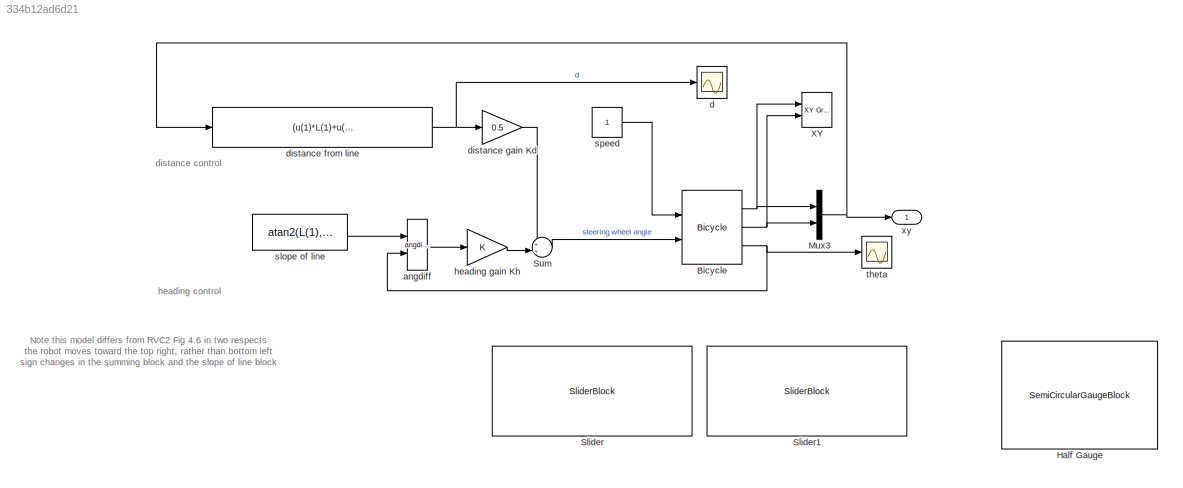
MODEL slx_334b12ad6d21
KIND model
CONFIG AbsTol = auto
CONFIG EnableMultiTasking = on
CONFIG FixedStep = auto
CONFIG InitFcn = if ~exist('x0')\n  x0 = [5 5 0];\n  msgbox(sprintf('x0 not defined in workspace, setting it to [%g %g %g]\n', x0));\nend\nif ~exist('L')\n  L = [1 -2 4];\n  msgbox(sprintf('L not defined in workspace, setting it to [%g %g %g]\n', L));\nend\n% clean up old vehicle icons\nset(0, 'ShowHiddenHandles', 'on')\ndelete(findobj('Tag', 'vehicle'))\nset(0, 'ShowHiddenHandles', 'off')
CONFIG MaxStep = auto
CONFIG MinStep = auto
CONFIG RelTol = 1e-3
CONFIG SampleTimeConstraint = Unconstrained
CONFIG Solver = ode45
CONFIG SolverName = ode45
CONFIG StartTime = 0.0
CONFIG StopFcn = % update the XY scope\nset(0, 'ShowHiddenHandles', 'on')\nfig = findobj('name', 'XY');\nax = findobj(fig, 'type', 'axes');\naxes(ax)\ngrid on\nhold on\nplot_vehicle(x0, 'r', 'Tag', 'vehicle')\nplot_homline(L, 'r--', 'Tag', 'vehicle')\nhold off\nset(0, 'ShowHiddenHandles', 'off')
CONFIG StopTime = 15.0
BLOCK [Reference] Bicycle  REF=roblocks/Vehicles/Bicycle  (lib defined in mdl_2a292b13c81b, mdl_69400f8cfe22, +12 more)
  Ports = [2, 3]
  SourceBlock = roblocks/Vehicles/Bicycle
BLOCK [SemiCircularGaugeBlock] Half Gauge
  LabelPosition = Bottom
  ScaleMax = 1
  ScaleMin = -1
BLOCK [Mux] Mux3
  DisplayOption = bar
  Inputs = 2
  Ports = [2, 1]
BLOCK [SliderBlock] Slider
  LabelPosition = Bottom
  ScaleMax = 1
BLOCK [SliderBlock] Slider1
  LabelPosition = Bottom
  ScaleMax = 2
BLOCK [Sum] Sum
  IconShape = round
  InputSameDT = off
  Inputs = ++|
  OutDataTypeStr = Inherit: Inherit via internal rule
  Ports = [2, 1]
  SaturateOnIntegerOverflow = off
BLOCK [Reference] XY  REF=simulink/Sinks/XY Graph
  Ports = [2]
  SourceBlock = simulink/Sinks/XY Graph
  SourceProductBaseCode = SL
  SourceProductName = Simulink
  SourceType = XY scope.
BLOCK [Reference] angdiff  REF=roblocks/Toolbox/angdiff  (lib defined in mdl_2a292b13c81b, mdl_69400f8cfe22, +12 more)
  Ports = [2, 1]
  SourceBlock = roblocks/Toolbox/angdiff
BLOCK [Scope] d
  Floating = off
  NumInputPorts = 1
  Ports = [1]
  ScopeSpecificationString = Simulink.scopes.TimeScopeBlockCfg('CurrentConfiguration', extmgr.ConfigurationSet(extmgr.Configuration('Core','General UI',true),extmgr.Configuration('Core','Source UI',true),extmgr.Configuration('Sources','WiredSimulink',true,'DataLoggingVariableName','ScopeData1','DataLoggingSaveFormat','StructureWithTime','DataLoggingDecimation','1'),extmgr.Configuration('Visuals','Time Domain',true,'Serialized...<+1731ch>
BLOCK [Fcn] distance from line
  Expr = (u(1)*L(1)+u(2)*L(2)+L(3))/sqrt(L(1)^2+L(2)^2)
BLOCK [Gain] distance gain Kd
  Gain = 0.5
  OutDataTypeStr = Inherit: Inherit via internal rule
  ParamDataTypeStr = Inherit: Inherit via internal rule
  SaturateOnIntegerOverflow = off
BLOCK [Gain] heading gain Kh
  OutDataTypeStr = Inherit: Inherit via internal rule
  ParamDataTypeStr = Inherit: Inherit via internal rule
  SaturateOnIntegerOverflow = off
BLOCK [Constant] slope of line
  Value = atan2(L(1),-L(2))
BLOCK [Constant] speed
  SampleTime = 0.02
  VectorParams1D = off
BLOCK [Scope] theta
  Floating = off
  NumInputPorts = 1
  Ports = [1]
  ScopeSpecificationString = Simulink.scopes.TimeScopeBlockCfg('CurrentConfiguration', extmgr.ConfigurationSet(extmgr.Configuration('Core','General UI',true),extmgr.Configuration('Core','Source UI',true),extmgr.Configuration('Sources','WiredSimulink',true,'DataLoggingSaveFormat','StructureWithTime','DataLoggingDecimation','1'),extmgr.Configuration('Visuals','Time Domain',true,'SerializedDisplays',{struct('MinYLimReal','-1.134...<+1693ch>
BLOCK [Outport] xy
  IconDisplay = Port number
  VectorParamsAs1DForOutWhenUnconnected = off
ANNOTATION (root): Note this model differs from RVC2 Fig 4.6 in two respects the robot moves toward the top right, rather than bottom left sign changes in the summing block and the slope of line block
ANNOTATION (root): distance control
ANNOTATION (root): heading control
NET Bicycle:1 -> Mux3:1, XY:1
NET Bicycle:2 -> Mux3:2, XY:2
NET Bicycle:3 -> angdiff:2, theta:1
NET Mux3:1 -> distance from line:1, xy:1
LINE Sum:1 -> Bicycle:2
LINE angdiff:1 -> heading gain Kh:1
NET distance from line:1 -> d:1, distance gain Kd:1
LINE distance gain Kd:1 -> Sum:1
LINE heading gain Kh:1 -> Sum:2
LINE slope of line:1 -> angdiff:1
LINE speed:1 -> Bicycle:1
note: NET lines group one-source signal fan-out (src -> all destinations, sorted); 1:1 wires keep LINE
